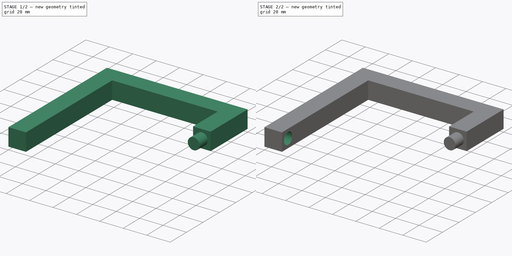
[diagram: build sequence overview — one tinted view per stage of 2, left to right]
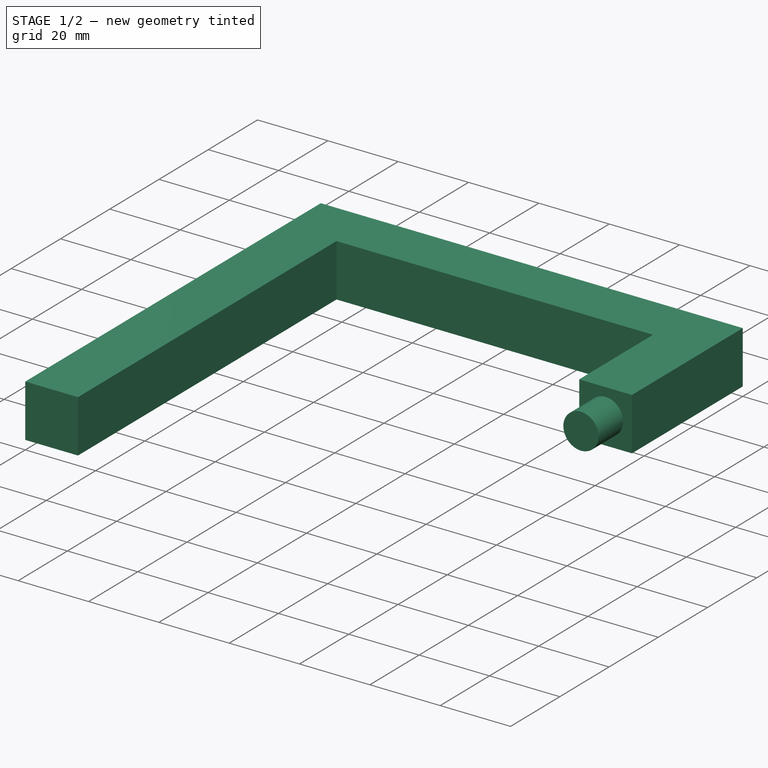
[diagram: stage 1 of 2 — iso view after this stage's code; geometry added in this stage tinted green]
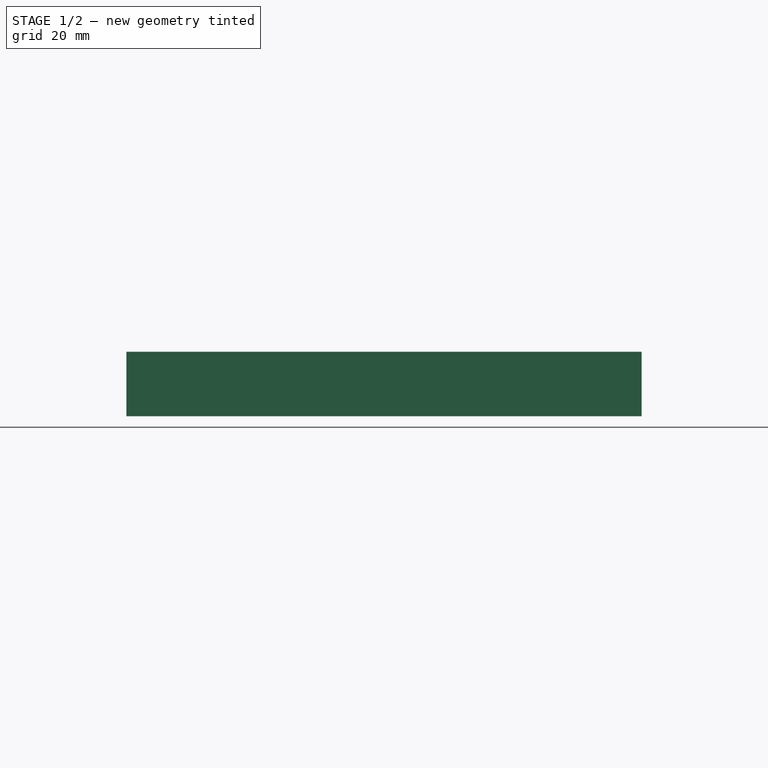
[diagram: stage 1 of 2 — front view after this stage's code; geometry added in this stage tinted green]
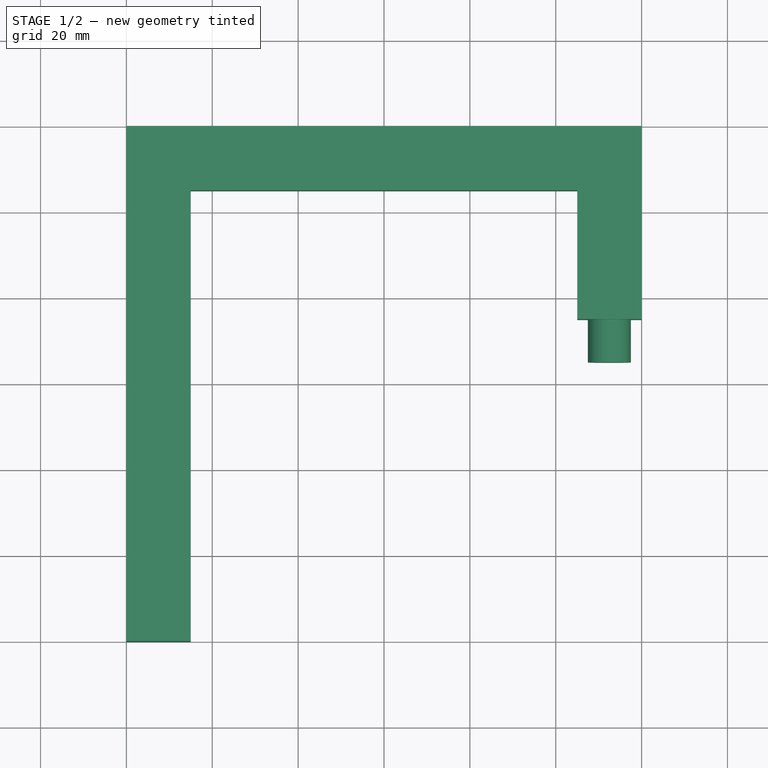
[diagram: stage 1 of 2 — top view after this stage's code; geometry added in this stage tinted green]
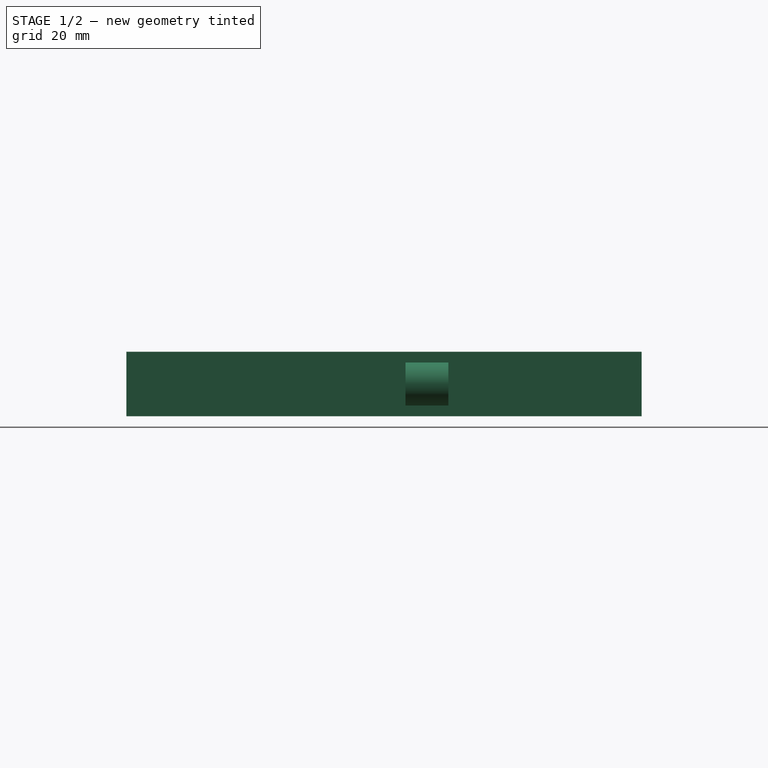
[diagram: stage 1 of 2 — right view after this stage's code; geometry added in this stage tinted green]
FCSTD DOCUMENT  (FreeCAD 0.20R29603 (Git))
Label: figureAssemblyV3
License: All rights reserved
LicenseURL: http://en.wikipedia.org/wiki/All_rights_reserved
objects: App::Link×6, Sketcher::SketchObject×3, App::DocumentObjectGroup×3, PartDesign::Pad×2, PartDesign::CoordinateSystem×2, App::FeaturePython×1, App::Part×1, PartDesign::Pocket×1, PartDesign::Body×1
note: 12 computed .brp shape members not serialized (recipe doc carries the construction recipe); baked Part::Feature solids carry a one-line shape summary decoded from their .brp

FEATURE [Sketcher::SketchObject] Sketch009  label="tbaseSketch001"
  FullyConstrained = false
  MapMode = 5
  Support = -> [XY_Plane]
  sketch-geometry (8):
    g0: LineSegment StartX=-45 StartY=45 StartZ=0 EndX=45 EndY=45 EndZ=0
    g1: LineSegment StartX=45 StartY=45 StartZ=0 EndX=45 EndY=15 EndZ=0
    g2: LineSegment StartX=60 StartY=15 StartZ=0 EndX=60 EndY=60 EndZ=0
    g3: LineSegment StartX=60 StartY=60 StartZ=0 EndX=-60 EndY=60 EndZ=0
    g4: LineSegment StartX=-60 StartY=60 StartZ=0 EndX=-60 EndY=-60 EndZ=0
    g5: LineSegment StartX=-45 StartY=45 StartZ=0 EndX=-45 EndY=-60 EndZ=0
    g6: LineSegment StartX=-45 StartY=-60 StartZ=0 EndX=-60 EndY=-60 EndZ=0
    g7: LineSegment StartX=45 StartY=15 StartZ=0 EndX=60 EndY=15 EndZ=0
  constraints (21):
    c: Horizontal(g0)
    c: Coincident(g0,g1)
    c: Vertical(g1)
    c: Vertical(g2)
    c: Coincident(g2,g3)
    c: Horizontal(g3)
    c: Coincident(g3,g4)
    c: Vertical(g4)
    c: Distance(g0) = 90
    c: Coincident(g5,g0)
    c: Vertical(g5)
    c: Coincident(g6,g5)
    c: Coincident(g6,g4)
    c: Horizontal(g6)
    c: Distance(g6) = 15
    c: Symmetric(g2,g4,g-1)
    c: DistanceY(g4,g4) = 120
    c: Horizontal(g7)
    c: Coincident(g1,g7)
    c: Coincident(g2,g7)
    c: DistanceY(g2) = 15
FEATURE [PartDesign::Pad] Pad
  Direction = (0,0,1)
  Length = 15
  Length2 = 10
  Profile = -> Sketch009
  ReferenceAxis = -> Sketch009 [N_Axis]
  Type = 0
FEATURE [PartDesign::CoordinateSystem] LCS_1
  AttacherType = Attacher::AttachEngine3D
FEATURE [PartDesign::CoordinateSystem] LCS_Origin
  AttacherType = Attacher::AttachEngine3D
  MapMode = 2
  Support = -> [X_Axis001]
FEATURE [App::DocumentObjectGroup] Constraints
FEATURE [App::FeaturePython] Variables  # WARN: FeaturePython — macro-defined, semantics opaque (R4)
  Type = App::PropertyContainer
FEATURE [App::DocumentObjectGroup] Configurations
FEATURE [App::Link] Body001  label="bottom"
  AttachedBy = #LCS_1
  AttachedTo = Parent Assembly#LCS_Origin
  LinkedObject = -> Body
  SolverId = Asm4EE
  expr: Placement = LCS_Origin.Placement * AttachmentOffset * LCS_1.Placement ^ -1
FEATURE [App::Link] Body002  label="top"
  AttachedBy = #LCS_1
  AttachedTo = Body001#LCS_1
  AttachmentOffset = pos=(-60,60,165) rot=(0,0,-1;3.14159rad)
  LinkPlacement = pos=(-60,60,165) rot=(0,0,-1;3.14159rad)
  LinkedObject = -> Body
  Placement = pos=(-60,60,165) rot=(0,0,-1;3.14159rad)
  SolverId = Asm4EE
  expr: Placement = Body001.Placement * LCS_1.Placement * AttachmentOffset * LCS_1.Placement ^ -1
FEATURE [App::Link] Body003  label="left1"
  AttachedBy = #LCS_1
  AttachedTo = Parent Assembly#LCS_Origin
  AttachmentOffset = pos=(-60,-45,60) rot=(-0.57735,-0.57735,0.57735;4.18879rad)
  LinkPlacement = pos=(-60,-45,60) rot=(-0.57735,-0.57735,0.57735;4.18879rad)
  LinkedObject = -> Body
  Placement = pos=(-60,-45,60) rot=(-0.57735,-0.57735,0.57735;4.18879rad)
  SolverId = Asm4EE
  expr: Placement = LCS_Origin.Placement * AttachmentOffset * LCS_1.Placement ^ -1
FEATURE [App::Link] Body004  label="right2"
  AttachedBy = #LCS_1
  AttachedTo = Parent Assembly#LCS_Origin
  AttachmentOffset = pos=(45,60,60) rot=(0.57735,0.57735,0.57735;2.0944rad)
  LinkPlacement = pos=(45,60,60) rot=(0.57735,0.57735,0.57735;2.0944rad)
  LinkedObject = -> Body
  Placement = pos=(45,60,60) rot=(0.57735,0.57735,0.57735;2.0944rad)
  SolverId = Asm4EE
  expr: Placement = LCS_Origin.Placement * AttachmentOffset * LCS_1.Placement ^ -1
FEATURE [App::Link] Body005  label="left2"
  AttachedBy = #LCS_1
  AttachedTo = Parent Assembly#LCS_Origin
  AttachmentOffset = pos=(0,120,120) rot=(0.57735,-0.57735,0.57735;2.0944rad)
  LinkPlacement = pos=(0,120,120) rot=(0.57735,-0.57735,0.57735;2.0944rad)
  LinkedObject = -> Body
  Placement = pos=(0,120,120) rot=(0.57735,-0.57735,0.57735;2.0944rad)
  SolverId = Asm4EE
  expr: Placement = LCS_Origin.Placement * AttachmentOffset * LCS_1.Placement ^ -1
FEATURE [App::Link] Body006
  AttachedBy = #LCS_1
  AttachedTo = Parent Assembly#LCS_Origin
  AttachmentOffset = pos=(-120,0,120) rot=(0.57735,-0.57735,0.57735;4.18879rad)
  LinkPlacement = pos=(-120,0,120) rot=(0.57735,-0.57735,0.57735;4.18879rad)
  LinkedObject = -> Body
  Placement = pos=(-120,0,120) rot=(0.57735,-0.57735,0.57735;4.18879rad)
  SolverId = Asm4EE
  expr: Placement = LCS_Origin.Placement * AttachmentOffset * LCS_1.Placement ^ -1
FEATURE [App::Part] Assembly
  AssemblyType = Part::Link
  Group = -> [LCS_Origin,Constraints,Variables,Configurations,Body001,Body002,Body003,Body004,Body005,Body006]
  Origin = -> Origin001
  Type = Assembly
FEATURE [Sketcher::SketchObject] Sketch
  ExternalGeometry = -> [Pad]
  FullyConstrained = true
  MapMode = 5
  Placement = pos=(0,15,0) rot=(1,0,0;1.5708rad)
  Support = -> [Pad]
  sketch-geometry (2):
    g0: GeomPoint X=52.5 Y=7.5 Z=0
    g1: Circle CenterX=52.5 CenterY=7.5 CenterZ=0 NormalX=0 NormalY=0 NormalZ=1 AngleXU=0 Radius=5
  constraints (3):
    c: Symmetric(g-3,g-4,g0)
    c: Coincident(g1,g0)
    c: Diameter(g1) = 10
FEATURE [PartDesign::Pad] Pad001
  BaseFeature = -> Pad
  Direction = (0,-1,2e-16)
  Length = 10
  Length2 = 10
  Profile = -> Sketch
  ReferenceAxis = -> Sketch [N_Axis]
  Type = 0
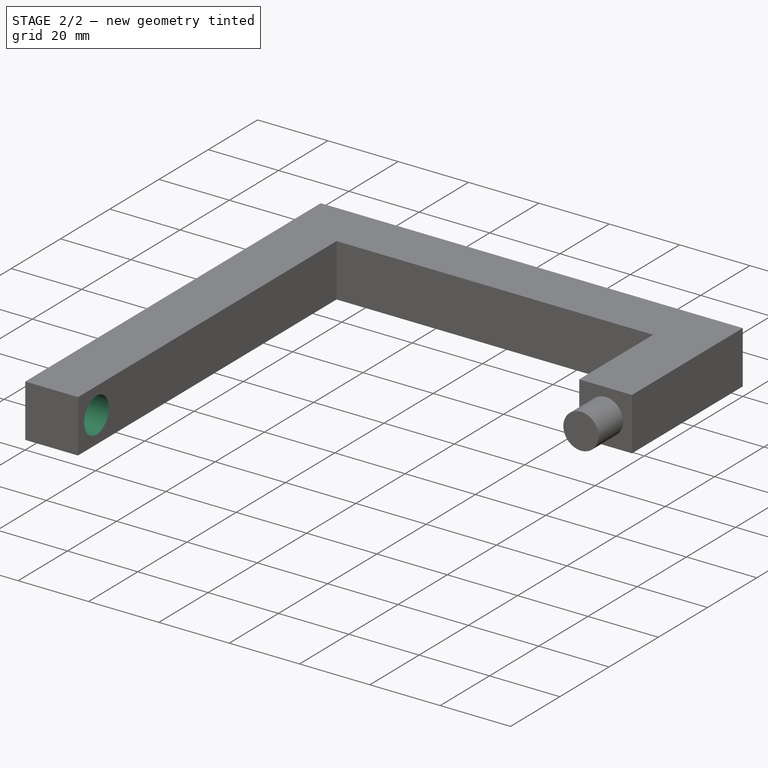
[diagram: stage 2 of 2 — iso view after this stage's code; geometry added in this stage tinted green]
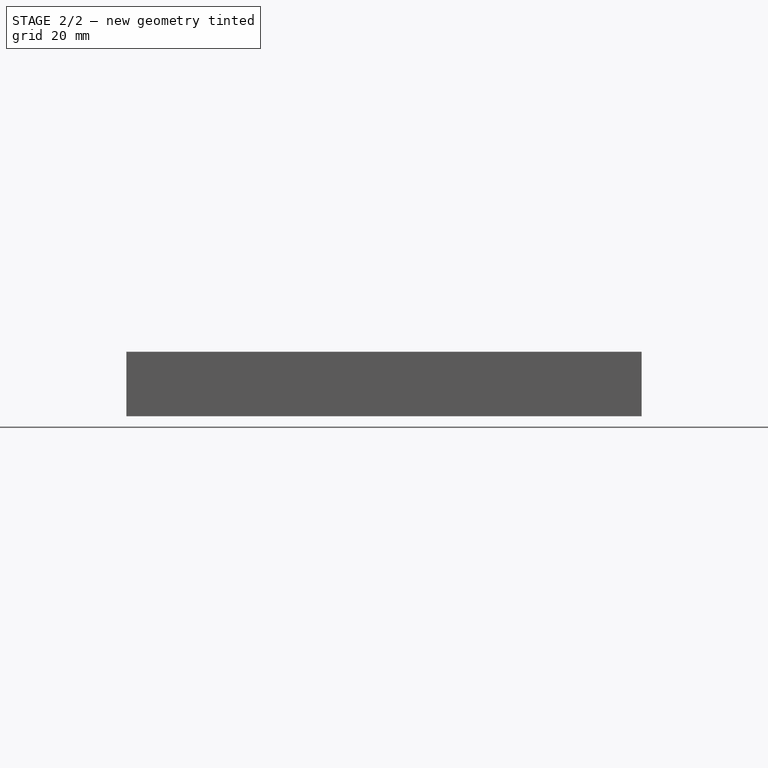
[diagram: stage 2 of 2 — front view after this stage's code; geometry added in this stage tinted green]
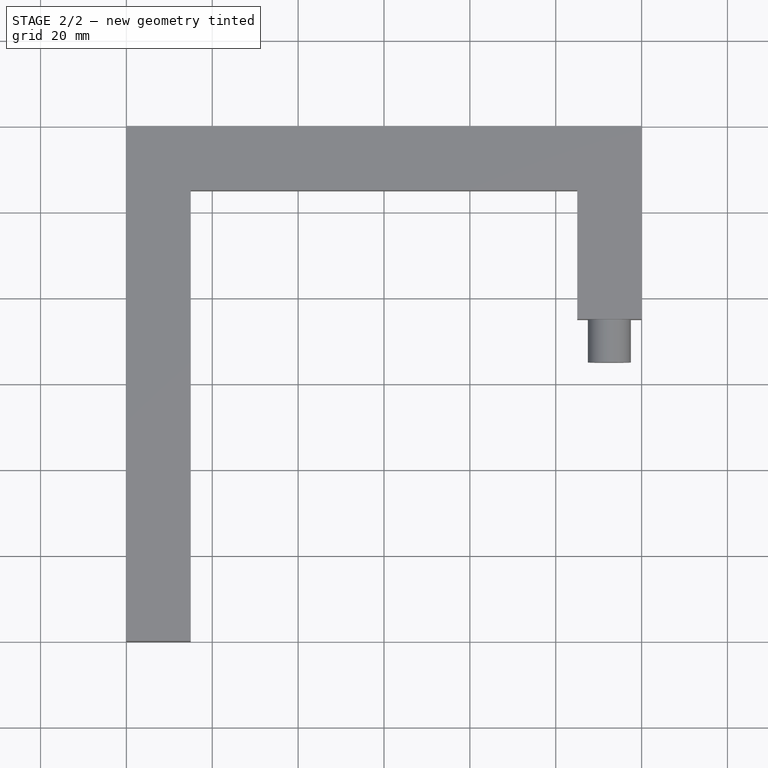
[diagram: stage 2 of 2 — top view after this stage's code; geometry added in this stage tinted green]
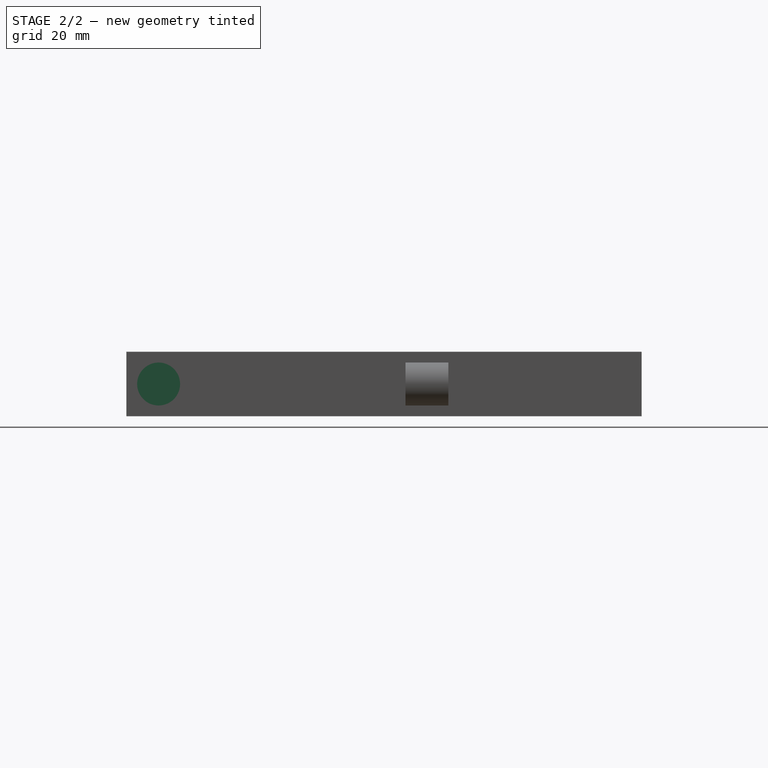
[diagram: stage 2 of 2 — right view after this stage's code; geometry added in this stage tinted green]
FEATURE [Sketcher::SketchObject] Sketch010
  ExternalGeometry = -> [Pad001]
  FullyConstrained = true
  MapMode = 5
  Placement = pos=(-45,0,0) rot=(0.57735,0.57735,0.57735;2.0944rad)
  Support = -> [Pad001]
  sketch-geometry (5):
    g0: LineSegment StartX=-60 StartY=15 StartZ=0 EndX=-45 EndY=15 EndZ=0
    g1: LineSegment StartX=-45 StartY=15 StartZ=0 EndX=-45 EndY=0 EndZ=0
    g2: LineSegment StartX=-45 StartY=0 StartZ=0 EndX=-60 EndY=0 EndZ=0
    g3: GeomPoint X=-52.5 Y=7.5 Z=0
    g4: Circle CenterX=-52.5 CenterY=7.5 CenterZ=0 NormalX=0 NormalY=0 NormalZ=1 AngleXU=0 Radius=5
  constraints (11):
    c: Coincident(g0,g-3)
    c: Coincident(g1,g0)
    c: Vertical(g1)
    c: Coincident(g2,g1)
    c: Coincident(g2,g-3)
    c: Horizontal(g2)
    c: Equal(g1,g2)
    c: Horizontal(g0)
    c: Symmetric(g0,g2,g3)
    c: Coincident(g4,g3)
    c: Diameter(g4) = 10
FEATURE [PartDesign::Pocket] Pocket
  BaseFeature = -> Pad001
  Direction = (-1,0,0)
  Length = 10
  Length2 = 5
  Profile = -> Sketch010
  ReferenceAxis = -> Sketch010 [N_Axis]
  Type = 0
FEATURE [PartDesign::Body] Body
  Group = -> [Sketch009,Pad,LCS_1,Sketch,Pad001,Sketch010,Pocket]
  Origin = -> Origin
  Tip = -> Pocket
FEATURE [App::DocumentObjectGroup] Parts
  Group = -> [Body]
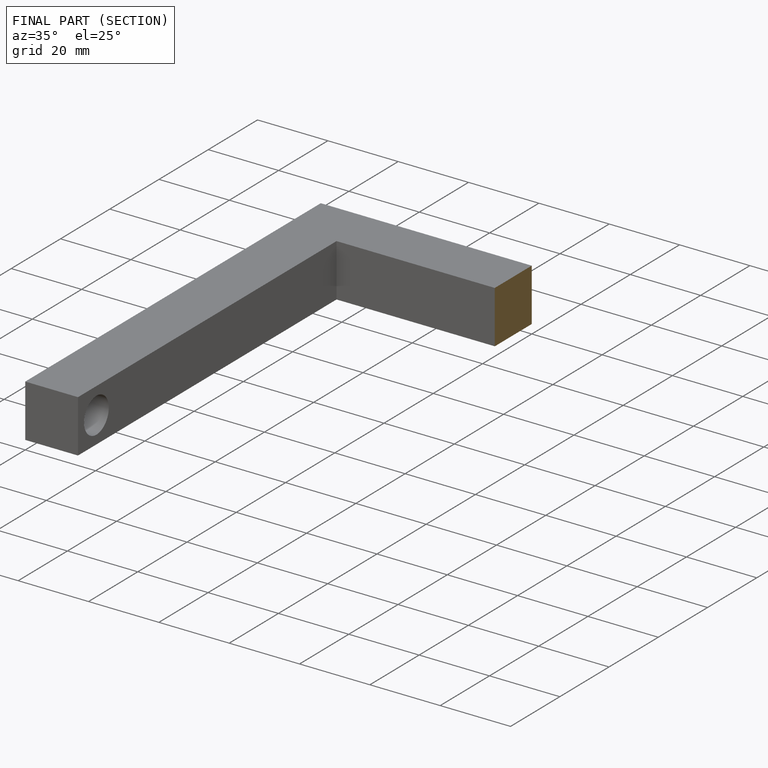
[diagram: finished part — half-section view (interior)]
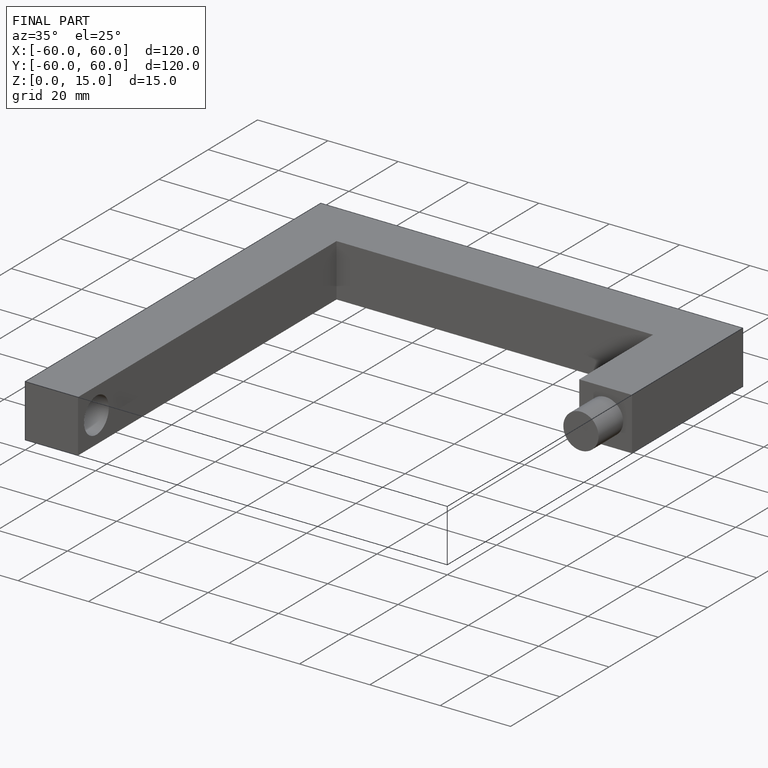
[diagram: finished part — iso view with bounding-box wireframe]
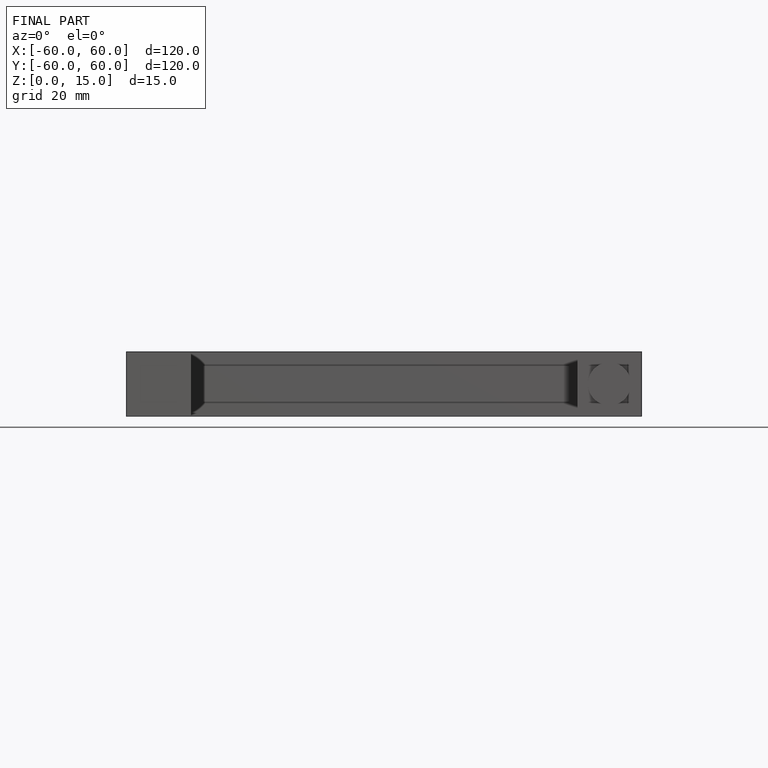
[diagram: finished part — front view with bounding-box wireframe]
